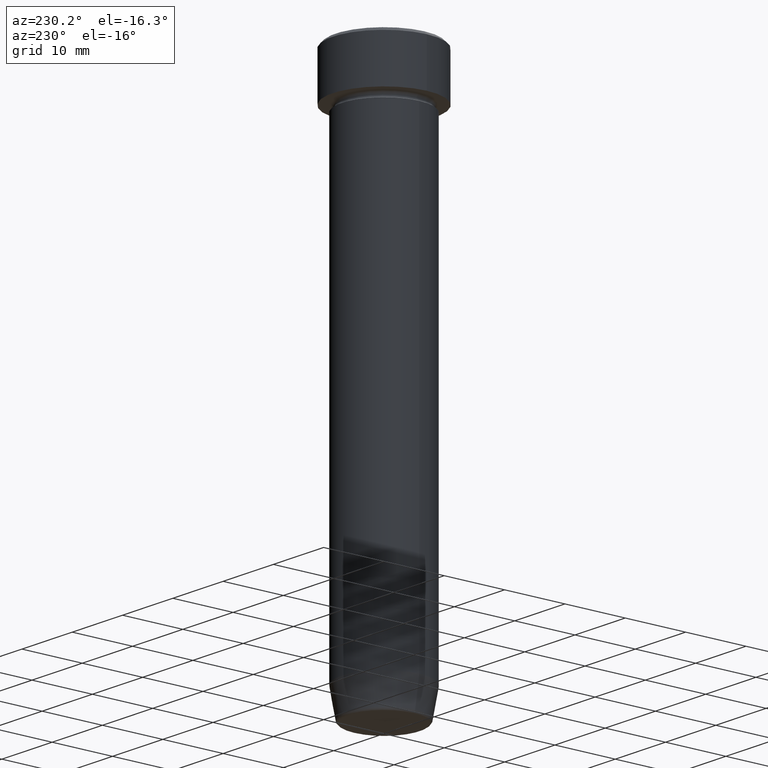
[diagram: clean part render]
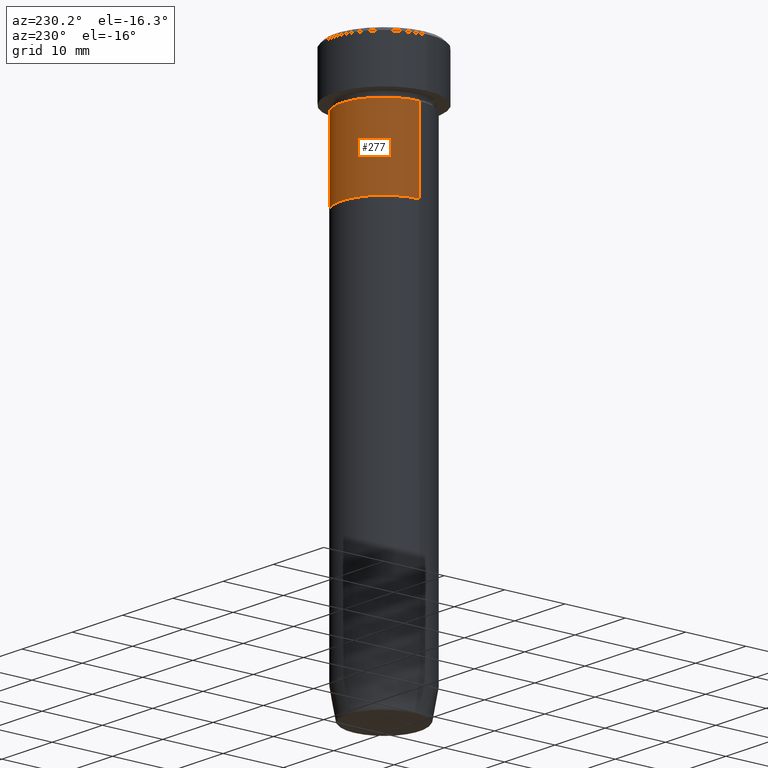
[diagram: same view with one face highlighted and labeled with its STEP entity id]
A machine part, auxiliary view. The second image highlights one B-rep face of the part: STEP entity #277.
In plain terms, the highlighted cylindrical surface (partial cylindrical patch) has radius 7 mm, axis along (-0, -0, 1).
Its self-contained STEP definition (entity closure, byte-faithful):
#26 = VERTEX_POINT ( 'NONE', #172 ) ;
#34 = AXIS2_PLACEMENT_3D ( 'NONE', #269, #502, #324 ) ;
#41 = EDGE_CURVE ( 'NONE', #138, #429, #303, .T. ) ;
#48 = ORIENTED_EDGE ( 'NONE', *, *, #156, .F. ) ;
#69 = CYLINDRICAL_SURFACE ( 'NONE', #167, 6.999999999999999112 ) ;
#124 = CARTESIAN_POINT ( 'NONE',  ( 6.999999999999999112, 0.000000000000000000, 0.000000000000000000 ) ) ;
#138 = VERTEX_POINT ( 'NONE', #187 ) ;
#140 = CARTESIAN_POINT ( 'NONE',  ( -6.999999999999999112, 8.572527594031472204E-16, -22.00000000000000000 ) ) ;
#148 = EDGE_CURVE ( 'NONE', #138, #199, #559, .T. ) ;
#156 = EDGE_CURVE ( 'NONE', #429, #26, #339, .T. ) ;
#162 = EDGE_LOOP ( 'NONE', ( #468, #446, #48, #239 ) ) ;
#167 = AXIS2_PLACEMENT_3D ( 'NONE', #413, #325, #462 ) ;
#172 = CARTESIAN_POINT ( 'NONE',  ( -7.000000000000000888, 8.572527594031474176E-16, -9.000000000000001776 ) ) ;
#187 = CARTESIAN_POINT ( 'NONE',  ( 6.999999999999999112, 0.000000000000000000, -22.00000000000000000 ) ) ;
#199 = VERTEX_POINT ( 'NONE', #140 ) ;
#239 = ORIENTED_EDGE ( 'NONE', *, *, #41, .F. ) ;
#269 = CARTESIAN_POINT ( 'NONE',  ( 0.000000000000000000, 0.000000000000000000, -22.00000000000000000 ) ) ;
#277 = ADVANCED_FACE ( 'NONE', ( #330 ), #69, .T. ) ;
#303 = LINE ( 'NONE', #124, #416 ) ;
#324 = DIRECTION ( 'NONE',  ( 1.000000000000000000, 0.000000000000000000, 0.000000000000000000 ) ) ;
#325 = DIRECTION ( 'NONE',  ( -0.000000000000000000, -0.000000000000000000, 1.000000000000000000 ) ) ;
#326 = EDGE_CURVE ( 'NONE', #199, #26, #417, .T. ) ;
#330 = FACE_OUTER_BOUND ( 'NONE', #162, .T. ) ;
#339 = CIRCLE ( 'NONE', #597, 7.000000000000000000 ) ;
#364 = DIRECTION ( 'NONE',  ( -0.000000000000000000, -0.000000000000000000, 1.000000000000000000 ) ) ;
#369 = CARTESIAN_POINT ( 'NONE',  ( 0.000000000000000000, 0.000000000000000000, -9.000000000000001776 ) ) ;
#374 = DIRECTION ( 'NONE',  ( -0.000000000000000000, -0.000000000000000000, 1.000000000000000000 ) ) ;
#406 = DIRECTION ( 'NONE',  ( 1.000000000000000000, 0.000000000000000000, 0.000000000000000000 ) ) ;
#413 = CARTESIAN_POINT ( 'NONE',  ( 0.000000000000000000, 0.000000000000000000, 0.000000000000000000 ) ) ;
#416 = VECTOR ( 'NONE', #582, 1000.000000000000000 ) ;
#417 = LINE ( 'NONE', #420, #545 ) ;
#420 = CARTESIAN_POINT ( 'NONE',  ( -6.999999999999999112, 8.572527594031472204E-16, 0.000000000000000000 ) ) ;
#429 = VERTEX_POINT ( 'NONE', #518 ) ;
#446 = ORIENTED_EDGE ( 'NONE', *, *, #326, .T. ) ;
#462 = DIRECTION ( 'NONE',  ( 1.000000000000000000, 0.000000000000000000, 0.000000000000000000 ) ) ;
#468 = ORIENTED_EDGE ( 'NONE', *, *, #148, .T. ) ;
#502 = DIRECTION ( 'NONE',  ( -0.000000000000000000, -0.000000000000000000, 1.000000000000000000 ) ) ;
#518 = CARTESIAN_POINT ( 'NONE',  ( 7.000000000000000000, 0.000000000000000000, -9.000000000000001776 ) ) ;
#545 = VECTOR ( 'NONE', #374, 1000.000000000000000 ) ;
#559 = CIRCLE ( 'NONE', #34, 6.999999999999999112 ) ;
#582 = DIRECTION ( 'NONE',  ( -0.000000000000000000, -0.000000000000000000, 1.000000000000000000 ) ) ;
#597 = AXIS2_PLACEMENT_3D ( 'NONE', #369, #364, #406 ) ;